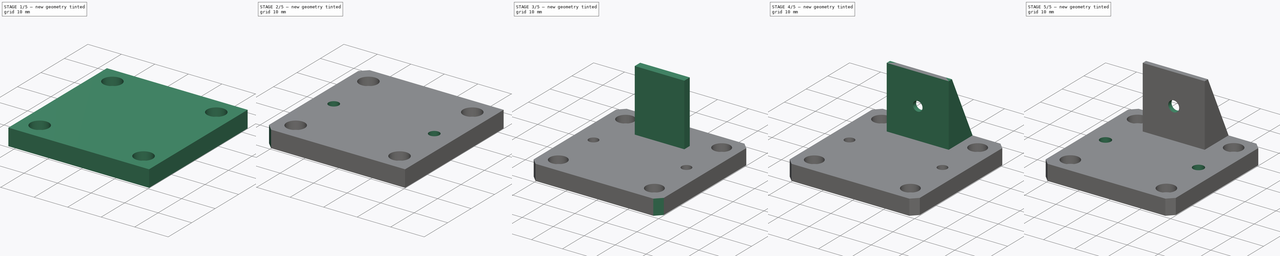
[diagram: build sequence overview — one tinted view per stage of 5, left to right]
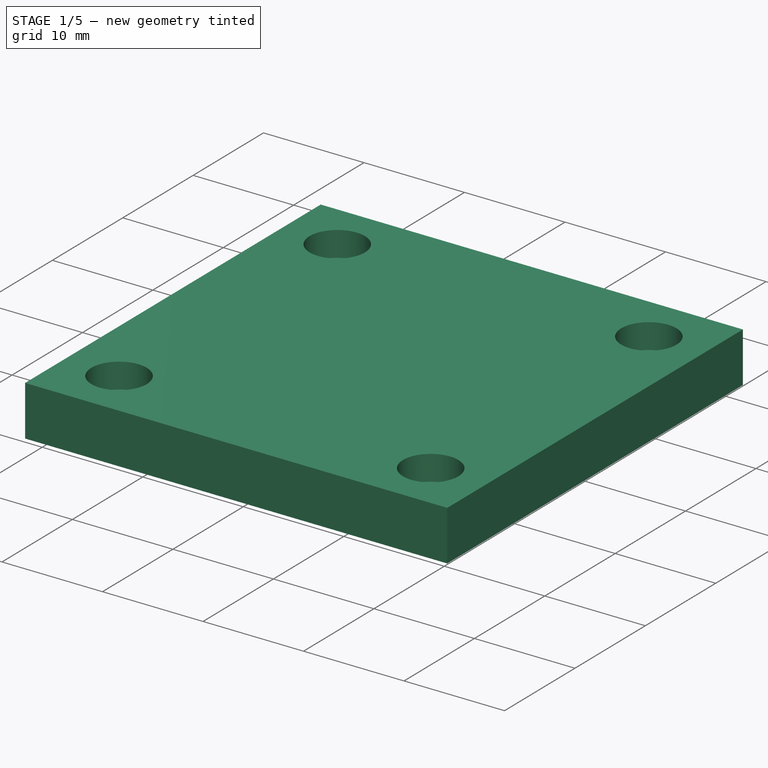
[diagram: stage 1 of 5 — iso view after this stage's code; geometry added in this stage tinted green]
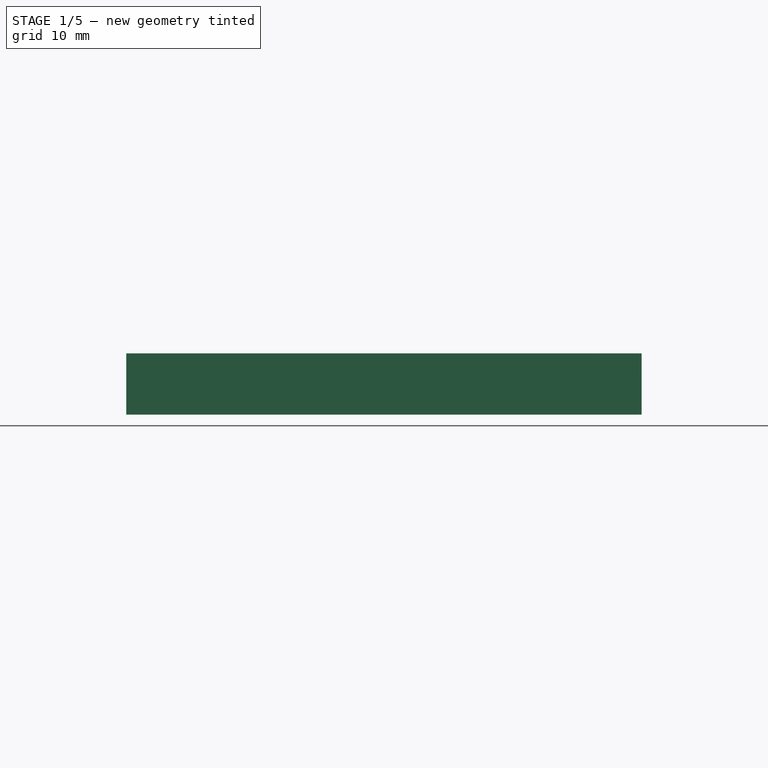
[diagram: stage 1 of 5 — front view after this stage's code; geometry added in this stage tinted green]
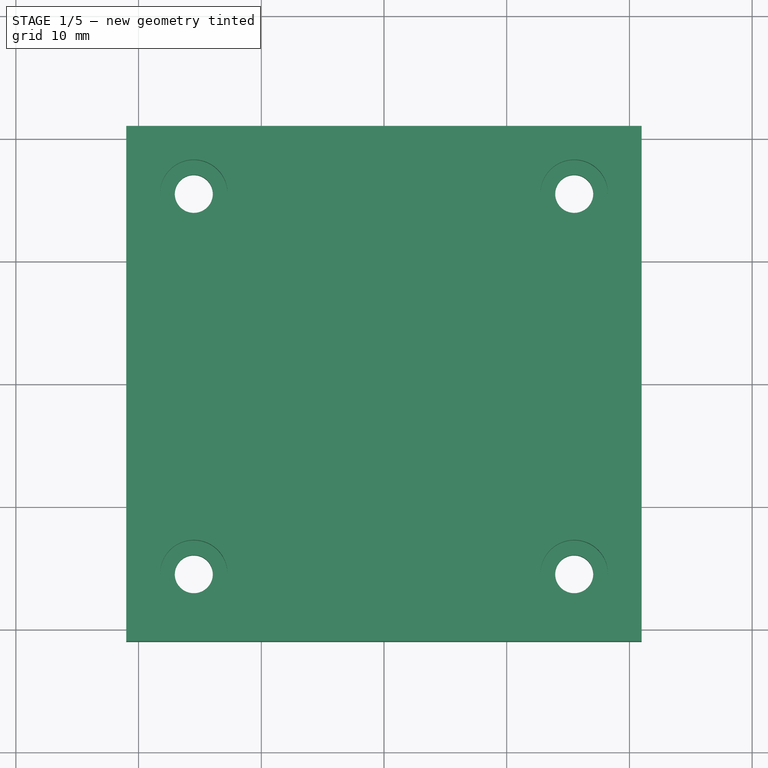
[diagram: stage 1 of 5 — top view after this stage's code; geometry added in this stage tinted green]
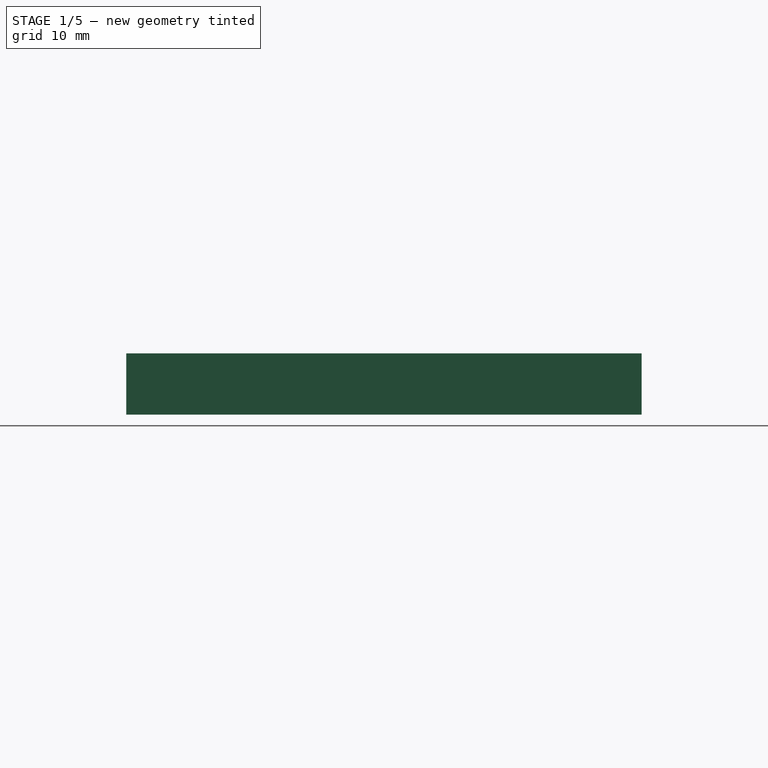
[diagram: stage 1 of 5 — right view after this stage's code; geometry added in this stage tinted green]
FCSTD DOCUMENT  (FreeCAD 0.16R6698 (Git))
Label: nema17_mount
License: All rights reserved
LicenseURL: http://en.wikipedia.org/wiki/All_rights_reserved
objects: Sketcher::SketchObject×13, PartDesign::Pocket×9, PartDesign::Chamfer×4, PartDesign::Pad×3, Part::Box×1
note: 42 computed .brp shape members not serialized (recipe doc carries the construction recipe); baked Part::Feature solids carry a one-line shape summary decoded from their .brp

FEATURE [Part::Box] Box
  Height = 5
  Length = 42
  Placement = pos=(-21,-21,0) rot=(0,0,1;0rad)
  Width = 42
FEATURE [Sketcher::SketchObject] Sketch
  Placement = pos=(-21,-21,5) rot=(0,0,1;0rad)
  Support = -> Box [Face6]
  sketch-geometry (8):
    g0: Circle CenterX=5.5 CenterY=5.5 CenterZ=0 NormalX=0 NormalY=0 NormalZ=1 Radius=2.75
    g1: LineSegment [constr] StartX=5.5 StartY=5.5 StartZ=0 EndX=36.5 EndY=5.5 EndZ=0
    g2: LineSegment [constr] StartX=36.5 StartY=5.5 StartZ=0 EndX=36.5 EndY=36.5 EndZ=0
    g3: LineSegment [constr] StartX=36.5 StartY=36.5 StartZ=0 EndX=5.5 EndY=36.5 EndZ=0
    g4: LineSegment [constr] StartX=5.5 StartY=36.5 StartZ=0 EndX=5.5 EndY=5.5 EndZ=0
    g5: Circle CenterX=36.5 CenterY=5.5 CenterZ=0 NormalX=0 NormalY=0 NormalZ=1 Radius=2.75
    g6: Circle CenterX=36.5 CenterY=36.5 CenterZ=0 NormalX=0 NormalY=0 NormalZ=1 Radius=2.75
    g7: Circle CenterX=5.5 CenterY=36.5 CenterZ=0 NormalX=0 NormalY=0 NormalZ=1 Radius=2.75
  constraints (20):
    c: Radius(g0) = 2.75  'Head recess'
    c: Coincident(g1,g2)
    c: Coincident(g2,g3)
    c: Coincident(g3,g4)
    c: Coincident(g4,g1)
    c: Horizontal(g1)
    c: Horizontal(g3)
    c: Vertical(g2)
    c: Vertical(g4)
    c: DistanceX(g1,g1) = 31
    c: DistanceY(g4,g4) = 31
    c: DistanceX(g-1,g1) = 5.5
    c: DistanceY(g-1,g1) = 5.5
    c: Coincident(g0,g1)
    c: Coincident(g3,g7)
    c: Coincident(g2,g6)
    c: Coincident(g1,g5)
    c: Radius(g5) = 2.75
    c: Radius(g6) = 2.75
    c: Radius(g7) = 2.75
FEATURE [PartDesign::Pocket] Pocket
  Length = 2.5
  Placement = pos=(-21,-21,0) rot=(0,0,1;0rad)
  Sketch = -> Sketch
  Type = 0
FEATURE [Sketcher::SketchObject] Sketch001
  Placement = pos=(-21,-21,0) rot=(1,0,0;3.14159rad)
  Support = -> Pocket [Face5]
  sketch-geometry (8):
    g0: LineSegment [constr] StartX=5.5 StartY=-5.5 StartZ=0 EndX=36.5 EndY=-5.5 EndZ=0
    g1: LineSegment [constr] StartX=36.5 StartY=-5.5 StartZ=0 EndX=36.5 EndY=-36.5 EndZ=0
    g2: LineSegment [constr] StartX=36.5 StartY=-36.5 StartZ=0 EndX=5.5 EndY=-36.5 EndZ=0
    g3: LineSegment [constr] StartX=5.5 StartY=-36.5 StartZ=0 EndX=5.5 EndY=-5.5 EndZ=0
    g4: Circle CenterX=5.5 CenterY=-5.5 CenterZ=0 NormalX=0 NormalY=0 NormalZ=1 Radius=1.55
    g5: Circle CenterX=36.5 CenterY=-5.5 CenterZ=0 NormalX=0 NormalY=0 NormalZ=1 Radius=1.55
    g6: Circle CenterX=36.5 CenterY=-36.5 CenterZ=0 NormalX=0 NormalY=0 NormalZ=1 Radius=1.55
    g7: Circle CenterX=5.5 CenterY=-36.5 CenterZ=0 NormalX=0 NormalY=0 NormalZ=1 Radius=1.55
  constraints (20):
    c: Coincident(g0,g1)
    c: Coincident(g1,g2)
    c: Coincident(g2,g3)
    c: Coincident(g3,g0)
    c: Horizontal(g0)
    c: Horizontal(g2)
    c: Vertical(g1)
    c: Vertical(g3)
    c: DistanceY(g0,g-1) = 5.5
    c: DistanceX(g-1,g0) = 5.5
    c: DistanceX(g0,g0) = 31
    c: DistanceY(g3,g3) = 31
    c: Radius(g4) = 1.55
    c: Coincident(g0,g4)
    c: Coincident(g5,g0)
    c: Coincident(g6,g1)
    c: Coincident(g7,g2)
    c: Radius(g5) = 1.55
    c: Radius(g6) = 1.55
    c: Radius(g7) = 1.55
FEATURE [PartDesign::Pocket] Pocket001
  Length = 5
  Placement = pos=(-21,-21,0) rot=(0,0,1;0rad)
  Sketch = -> Sketch001
  Type = 0
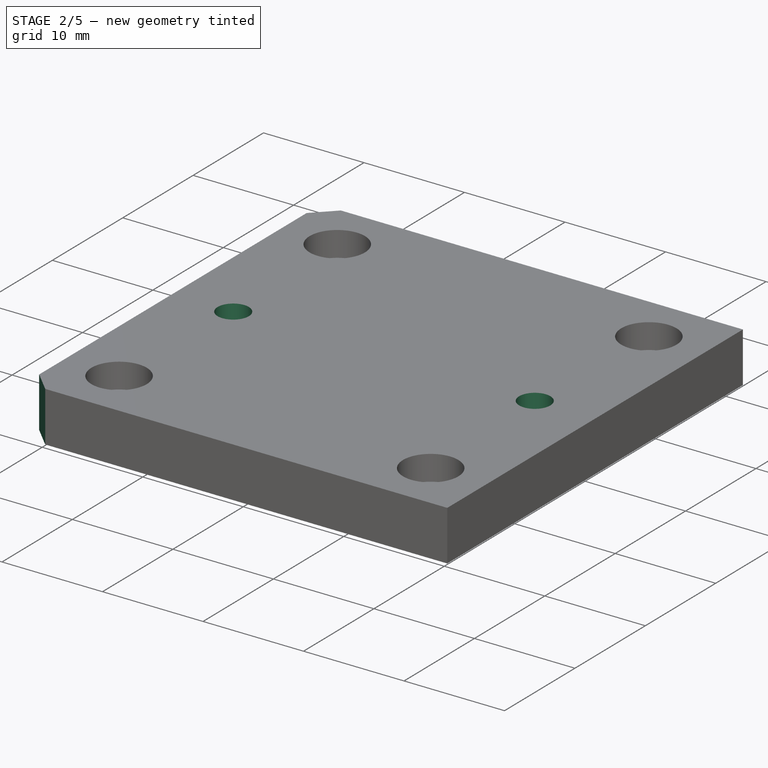
[diagram: stage 2 of 5 — iso view after this stage's code; geometry added in this stage tinted green]
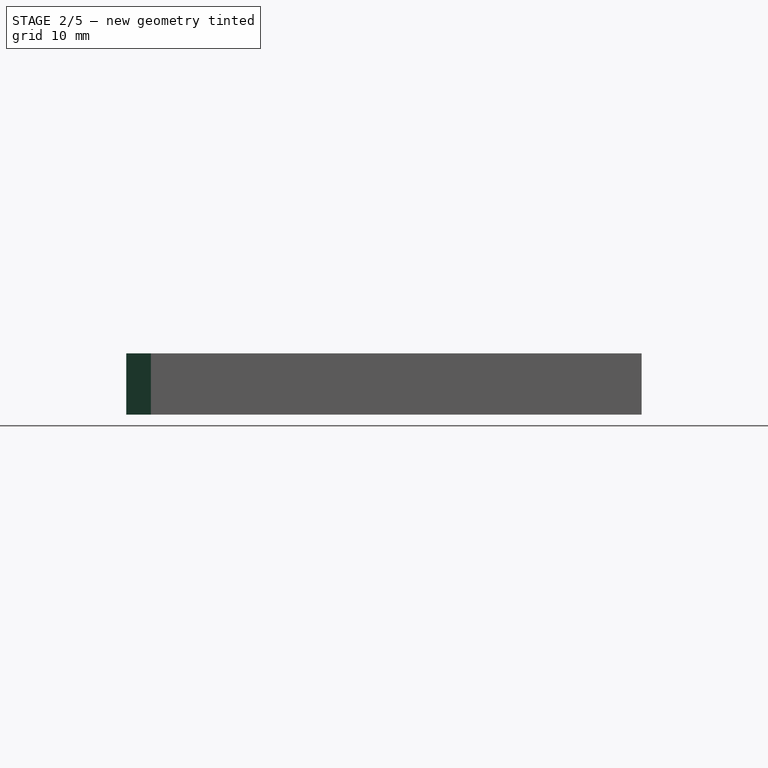
[diagram: stage 2 of 5 — front view after this stage's code; geometry added in this stage tinted green]
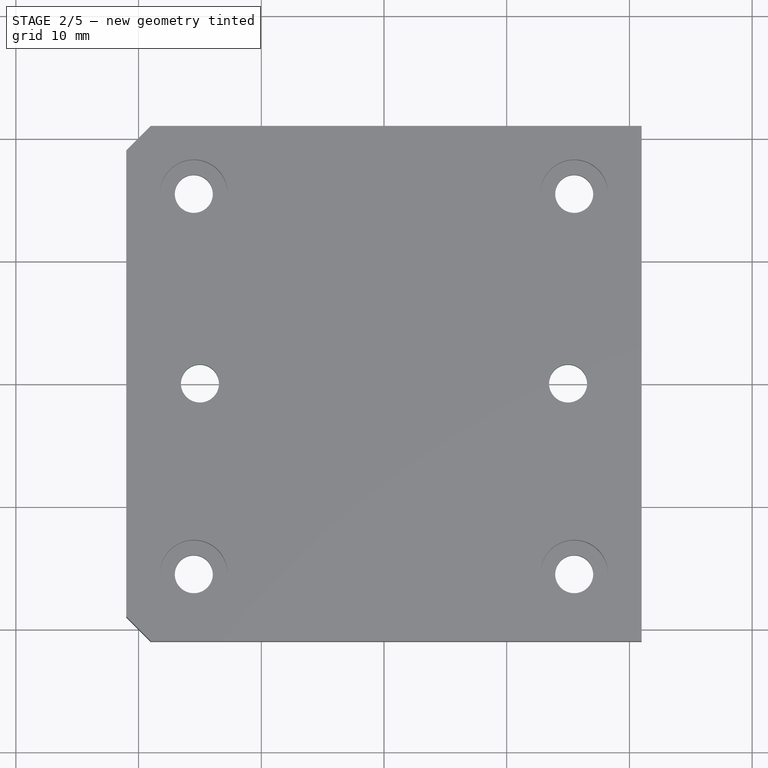
[diagram: stage 2 of 5 — top view after this stage's code; geometry added in this stage tinted green]
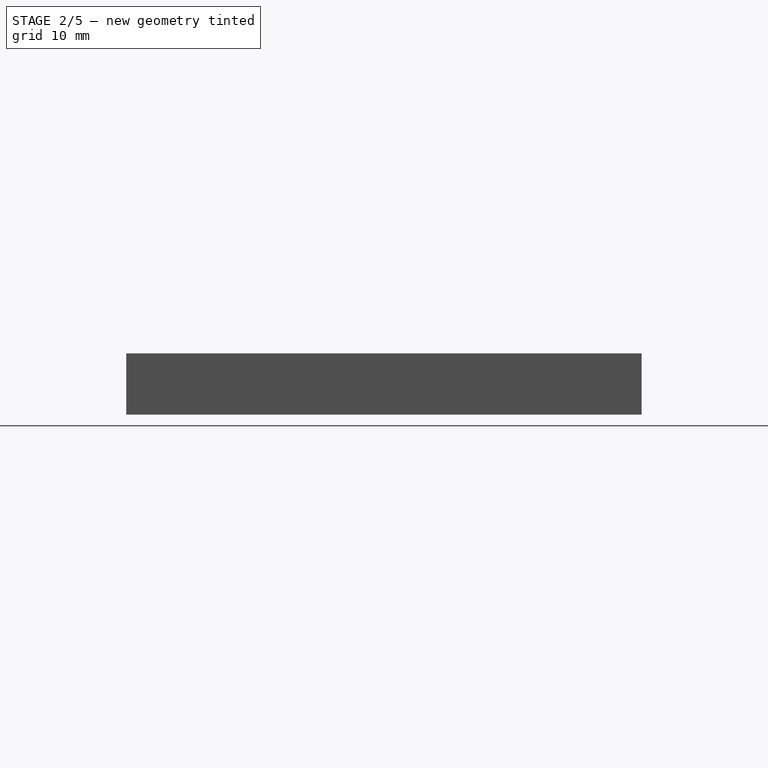
[diagram: stage 2 of 5 — right view after this stage's code; geometry added in this stage tinted green]
FEATURE [Sketcher::SketchObject] Sketch002
  Placement = pos=(-21,-21,0) rot=(1,0,0;3.14159rad)
  Support = -> Pocket001 [Face5]
  sketch-geometry (7):
    g0: LineSegment [constr] StartX=0 StartY=-11 StartZ=0 EndX=42 EndY=-11 EndZ=0
    g1: LineSegment [constr] StartX=42 StartY=-11 StartZ=0 EndX=42 EndY=-31 EndZ=0
    g2: LineSegment [constr] StartX=42 StartY=-31 StartZ=0 EndX=0 EndY=-31 EndZ=0
    g3: LineSegment [constr] StartX=0 StartY=-31 StartZ=0 EndX=0 EndY=-11 EndZ=0
    g4: LineSegment [constr] StartX=6 StartY=-21 StartZ=0 EndX=36 EndY=-21 EndZ=0
    g5: Circle CenterX=6 CenterY=-21 CenterZ=0 NormalX=0 NormalY=0 NormalZ=1 Radius=2.75
    g6: Circle CenterX=36 CenterY=-21 CenterZ=0 NormalX=0 NormalY=0 NormalZ=1 Radius=2.75
  constraints (19):
    c: Coincident(g0,g1)
    c: Coincident(g1,g2)
    c: Coincident(g2,g3)
    c: Coincident(g3,g0)
    c: Horizontal(g0)
    c: Horizontal(g2)
    c: Vertical(g1)
    c: Vertical(g3)
    c: DistanceX(g0,g0) = 42
    c: DistanceY(g0,g-1) = 11
    c: DistanceY(g3,g3) = 20
    c: DistanceX(g-1,g0) = 0
    c: DistanceX(g4,g4) = 30
    c: DistanceX(g0,g4) = 6
    c: DistanceY(g4,g0) = 10
    c: Horizontal(g4)
    c: Coincident(g4,g5)
    c: Radius(g5) = 2.75
    c: Radius(g6) = 2.75
FEATURE [PartDesign::Pocket] Pocket002
  Length = 2.5
  Placement = pos=(-21,-21,0) rot=(0,0,1;0rad)
  Sketch = -> Sketch002
  Type = 0
FEATURE [Sketcher::SketchObject] Sketch003
  Placement = pos=(-21,-21,5) rot=(0,0,1;0rad)
  Support = -> Pocket002 [Face3]
  sketch-geometry (3):
    g0: LineSegment [constr] StartX=6 StartY=21 StartZ=0 EndX=36 EndY=21 EndZ=0
    g1: Circle CenterX=6 CenterY=21 CenterZ=0 NormalX=0 NormalY=0 NormalZ=1 Radius=1.55
    g2: Circle CenterX=36 CenterY=21 CenterZ=0 NormalX=0 NormalY=0 NormalZ=1 Radius=1.55
  constraints (8):
    c: Horizontal(g0)
    c: DistanceX(g0,g0) = 30
    c: DistanceX(g-1,g0) = 6
    c: DistanceY(g-1,g0) = 21
    c: Coincident(g0,g1)
    c: Coincident(g0,g2)
    c: Radius(g2) = 1.55
    c: Radius(g1) = 1.55
FEATURE [PartDesign::Pocket] Pocket003
  Length = 5
  Placement = pos=(-21,-21,0) rot=(0,0,1;0rad)
  Sketch = -> Sketch003
  Type = 0
FEATURE [PartDesign::Chamfer] Chamfer
  Base = -> Pocket003 [Edge1]
  Placement = pos=(-21,-21,0) rot=(0,0,1;0rad)
  Size = 2
FEATURE [PartDesign::Chamfer] Chamfer001
  Base = -> Chamfer [Edge3]
  Placement = pos=(-21,-21,0) rot=(0,0,1;0rad)
  Size = 2
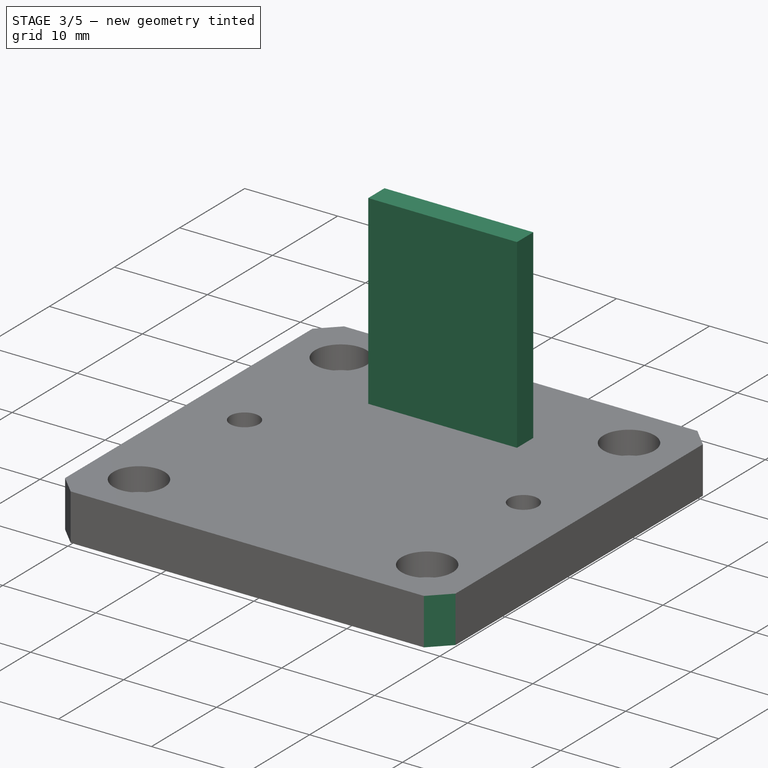
[diagram: stage 3 of 5 — iso view after this stage's code; geometry added in this stage tinted green]
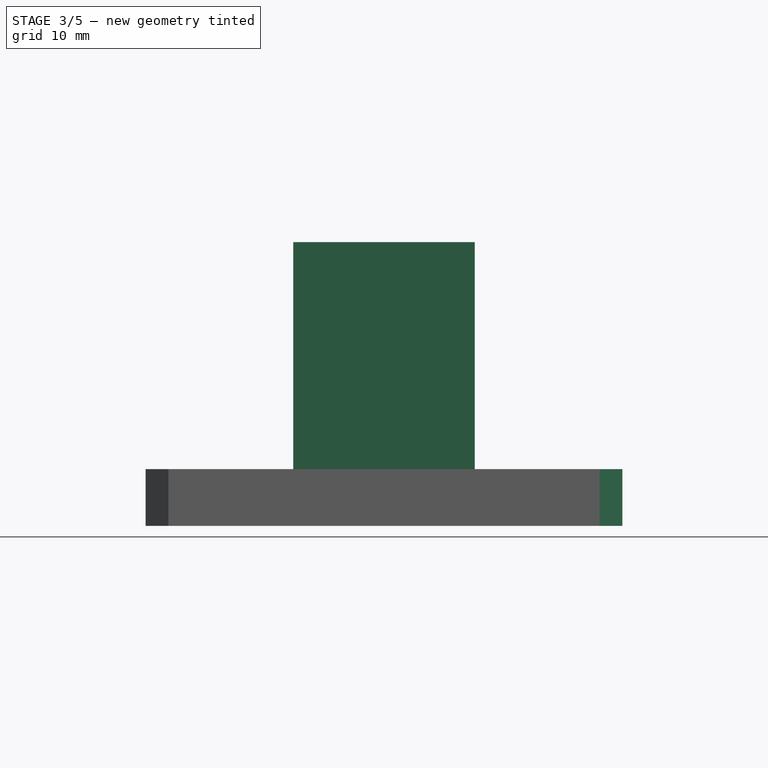
[diagram: stage 3 of 5 — front view after this stage's code; geometry added in this stage tinted green]
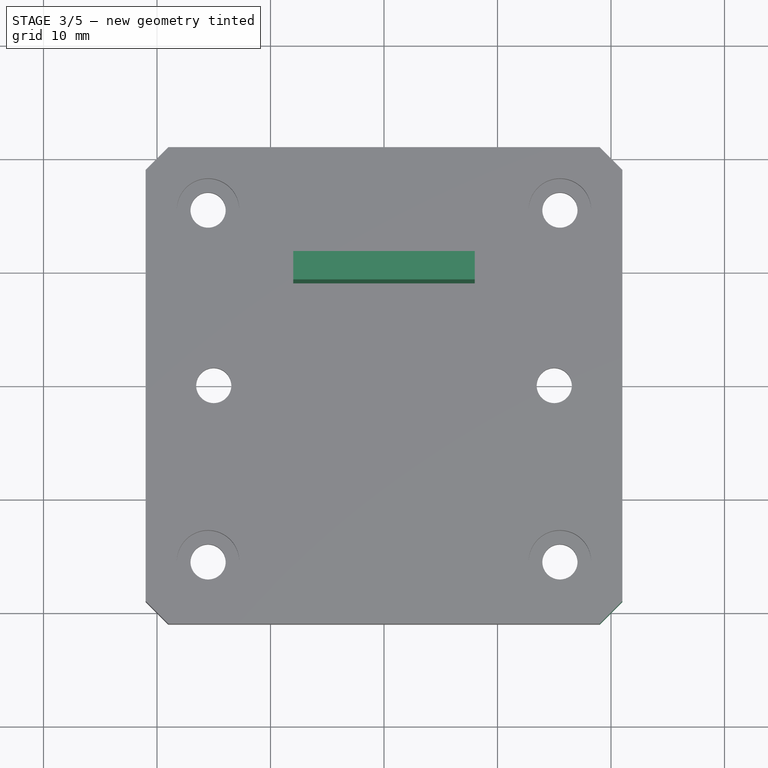
[diagram: stage 3 of 5 — top view after this stage's code; geometry added in this stage tinted green]
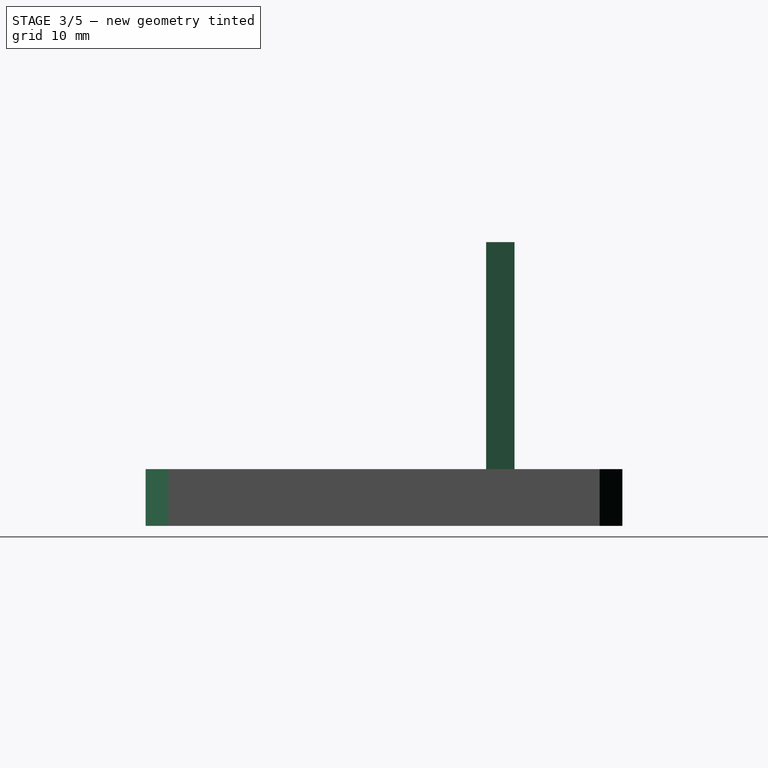
[diagram: stage 3 of 5 — right view after this stage's code; geometry added in this stage tinted green]
FEATURE [PartDesign::Chamfer] Chamfer002
  Base = -> Chamfer001 [Edge29]
  Placement = pos=(-21,-21,0) rot=(0,0,1;0rad)
  Size = 2
FEATURE [PartDesign::Chamfer] Chamfer003
  Base = -> Chamfer002 [Edge21]
  Placement = pos=(-21,-21,0) rot=(0,0,1;0rad)
  Size = 2
FEATURE [Sketcher::SketchObject] Sketch004
  Placement = pos=(-21,-21,5) rot=(0,0,1;0rad)
  Support = -> Chamfer003 [Face1]
  sketch-geometry (6):
    g0: LineSegment [constr] StartX=0 StartY=30 StartZ=0 EndX=42 EndY=30 EndZ=0
    g1: LineSegment StartX=13 StartY=30 StartZ=0 EndX=29 EndY=30 EndZ=0
    g2: LineSegment StartX=29 StartY=30 StartZ=0 EndX=29 EndY=32.5 EndZ=0
    g3: LineSegment StartX=29 StartY=32.5 StartZ=0 EndX=13 EndY=32.5 EndZ=0
    g4: LineSegment StartX=13 StartY=32.5 StartZ=0 EndX=13 EndY=30 EndZ=0
    g5: LineSegment [constr] StartX=21 StartY=41.6855 StartZ=0 EndX=21 EndY=-1.02632 EndZ=0
  constraints (18):
    c: DistanceX(g0,g0) = 42
    c: Horizontal(g0)
    c: DistanceX(g0,g-1) = 0
    c: DistanceY(g-1,g0) = 30
    c: Coincident(g1,g2)
    c: Coincident(g2,g3)
    c: Coincident(g3,g4)
    c: Coincident(g4,g1)
    c: Horizontal(g1)
    c: Horizontal(g3)
    c: Vertical(g2)
    c: Vertical(g4)
    c: DistanceX(g3,g3) = 16
    c: DistanceY(g4,g4) = 2.5
    c: DistanceY(g1,g0) = 0
    c: DistanceX(g0,g1) = 13
    c: Vertical(g5)
    c: DistanceX(g-1,g5) = 21
FEATURE [PartDesign::Pad] Pad
  Length = 20
  Length2 = 100
  Placement = pos=(-21,-21,0) rot=(0,0,1;0rad)
  Sketch = -> Sketch004
  Type = 0
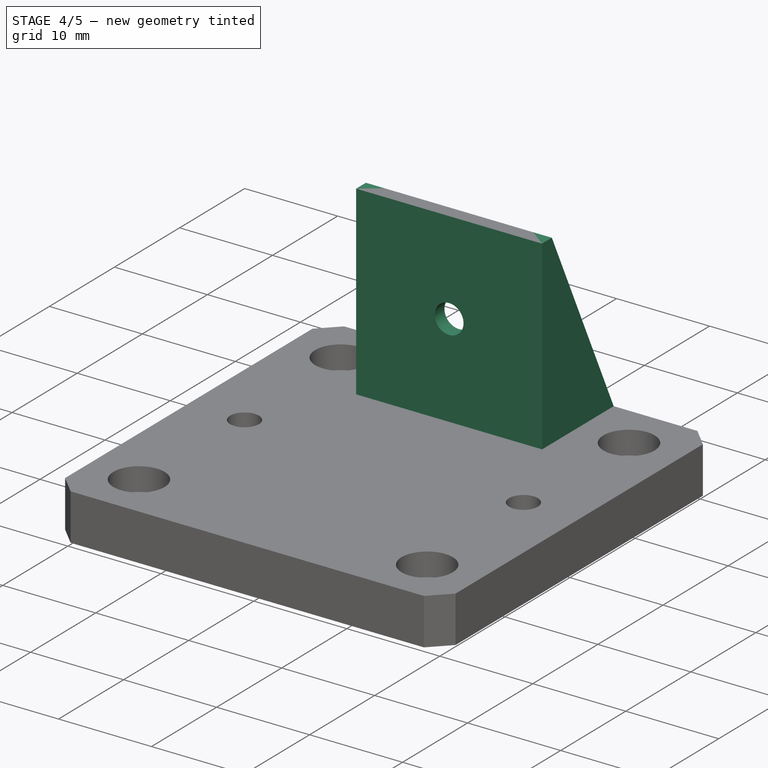
[diagram: stage 4 of 5 — iso view after this stage's code; geometry added in this stage tinted green]
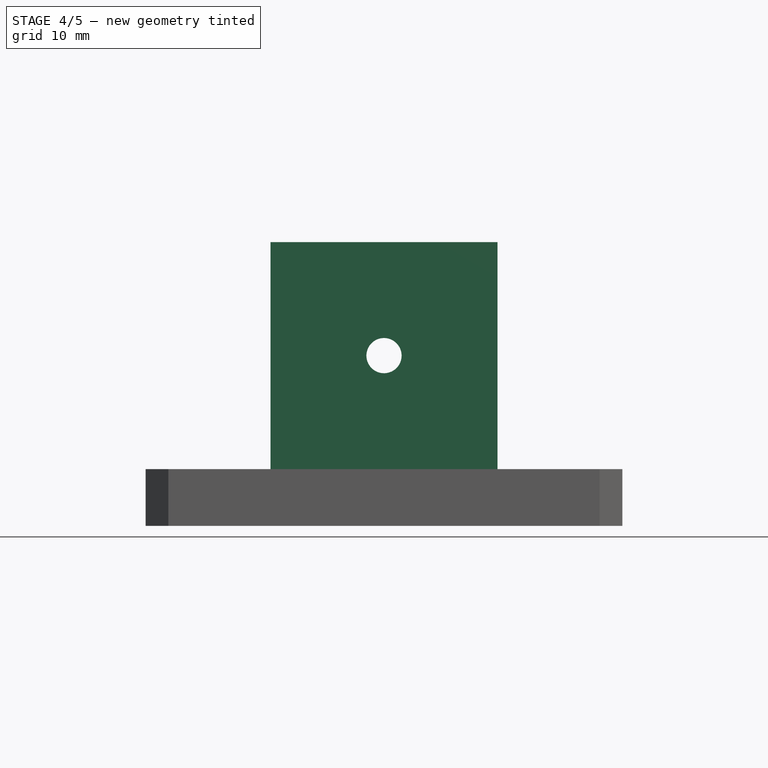
[diagram: stage 4 of 5 — front view after this stage's code; geometry added in this stage tinted green]
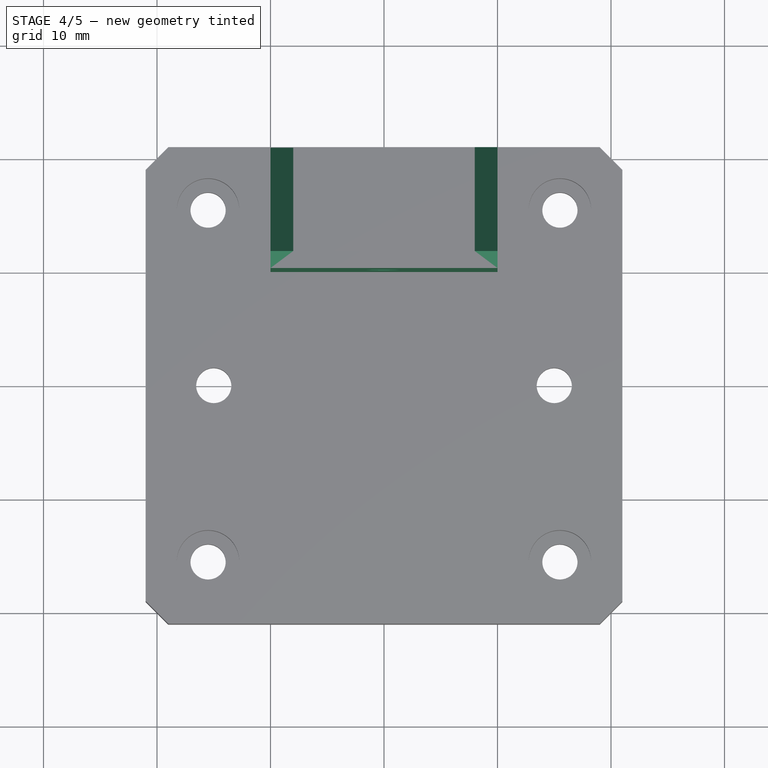
[diagram: stage 4 of 5 — top view after this stage's code; geometry added in this stage tinted green]
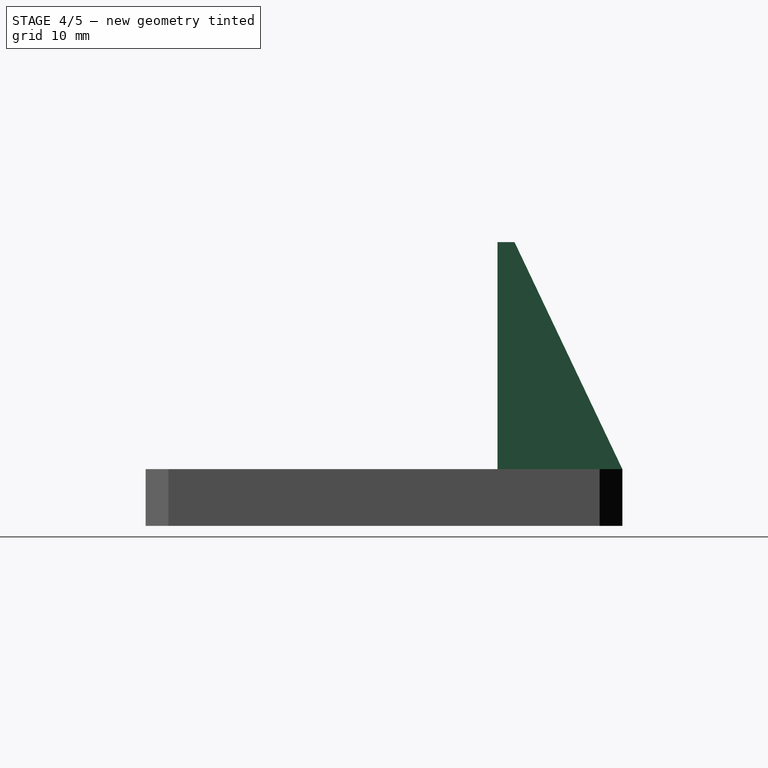
[diagram: stage 4 of 5 — right view after this stage's code; geometry added in this stage tinted green]
FEATURE [Sketcher::SketchObject] Sketch005
  ExternalGeometry = -> [Pad]
  Placement = pos=(-8,-21,0) rot=(0.57735,-0.57735,-0.57735;2.0944rad)
  Support = -> Pad [Face5]
  sketch-geometry (4):
    g0: LineSegment StartX=-30 StartY=25 StartZ=0 EndX=-32.5 EndY=25 EndZ=0
    g1: LineSegment StartX=-32.5 StartY=25 StartZ=0 EndX=-41.9451 EndY=5 EndZ=0
    g2: LineSegment StartX=-41.9451 StartY=5 StartZ=0 EndX=-30 EndY=5 EndZ=0
    g3: LineSegment StartX=-30 StartY=5 StartZ=0 EndX=-30 EndY=25 EndZ=0
  constraints (6):
    c: Coincident(g0,g1)
    c: Coincident(g1,g2)
    c: Coincident(g2,g3)
    c: Coincident(g3,g0)
    c: Coincident(g0,g-3)
    c: Coincident(g0,g-4)
FEATURE [PartDesign::Pad] Pad001
  Length = 2
  Length2 = 100
  Placement = pos=(-21,-21,0) rot=(0,0,1;0rad)
  Sketch = -> Sketch005
  Type = 0
FEATURE [Sketcher::SketchObject] Sketch006
  ExternalGeometry = -> [Pad001]
  Placement = pos=(8,-21,0) rot=(0.57735,0.57735,0.57735;2.0944rad)
  Support = -> Pad001 [Face1]
  sketch-geometry (4):
    g0: LineSegment StartX=30 StartY=25 StartZ=0 EndX=32.5 EndY=25 EndZ=0
    g1: LineSegment StartX=32.5 StartY=25 StartZ=0 EndX=42 EndY=5 EndZ=0
    g2: LineSegment StartX=42 StartY=5 StartZ=0 EndX=30 EndY=5 EndZ=0
    g3: LineSegment StartX=30 StartY=5 StartZ=0 EndX=30 EndY=25 EndZ=0
  constraints (7):
    c: Coincident(g0,g1)
    c: Coincident(g1,g2)
    c: Coincident(g2,g3)
    c: Coincident(g3,g0)
    c: Coincident(g0,g-4)
    c: Coincident(g1,g-5)
    c: Coincident(g0,g-3)
FEATURE [PartDesign::Pad] Pad002
  Length = 2
  Length2 = 100
  Placement = pos=(-21,-21,0) rot=(0,0,1;0rad)
  Sketch = -> Sketch006
  Type = 0
FEATURE [Sketcher::SketchObject] Sketch007
  ExternalGeometry = -> [Pad002]
  Placement = pos=(-21,11.5,0) rot=(0,0.707107,0.707107;3.14159rad)
  Support = -> Pad002 [Face4]
  sketch-geometry (1):
    g0: Circle CenterX=-21 CenterY=15 CenterZ=0 NormalX=0 NormalY=0 NormalZ=1 Radius=1.55
  constraints (3):
    c: DistanceX(g0,g-3) = 10
    c: DistanceY(g0,g-3) = 10
    c: Radius(g0) = 1.55
FEATURE [PartDesign::Pocket] Pocket004
  Length = 5
  Placement = pos=(-21,-21,0) rot=(0,0,1;0rad)
  Sketch = -> Sketch007
  Type = 0
FEATURE [Sketcher::SketchObject] Sketch008
  ExternalGeometry = -> [Pocket004]
  Placement = pos=(-21,9,0) rot=(1,0,0;1.5708rad)
  Support = -> Pocket004 [Face3]
  sketch-geometry (4):
    g0: LineSegment StartX=11 StartY=25 StartZ=0 EndX=31 EndY=25 EndZ=0
    g1: LineSegment StartX=31 StartY=25 StartZ=0 EndX=31 EndY=5 EndZ=0
    g2: LineSegment StartX=31 StartY=5 StartZ=0 EndX=11 EndY=5 EndZ=0
    g3: LineSegment StartX=11 StartY=5 StartZ=0 EndX=11 EndY=25 EndZ=0
  constraints (8):
    c: Coincident(g0,g1)
    c: Coincident(g1,g2)
    c: Coincident(g2,g3)
    c: Coincident(g3,g0)
    c: Horizontal(g0)
    c: Horizontal(g2)
    c: Vertical(g1)
    c: Vertical(g3)
FEATURE [PartDesign::Pocket] Pocket005
  Length = 1
  Placement = pos=(-21,-21,0) rot=(0,0,1;0rad)
  Sketch = -> Sketch008
  Type = 0
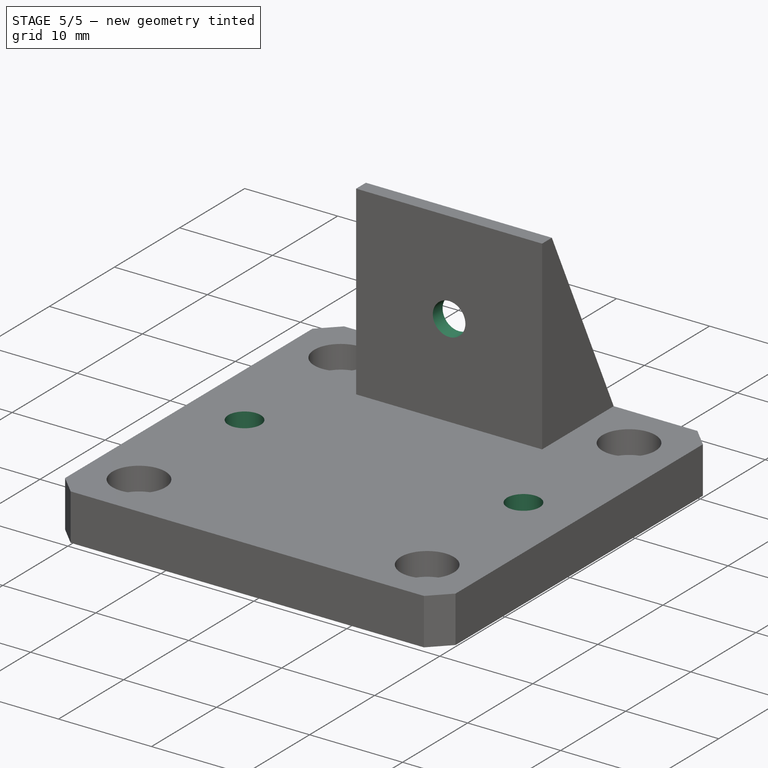
[diagram: stage 5 of 5 — iso view after this stage's code; geometry added in this stage tinted green]
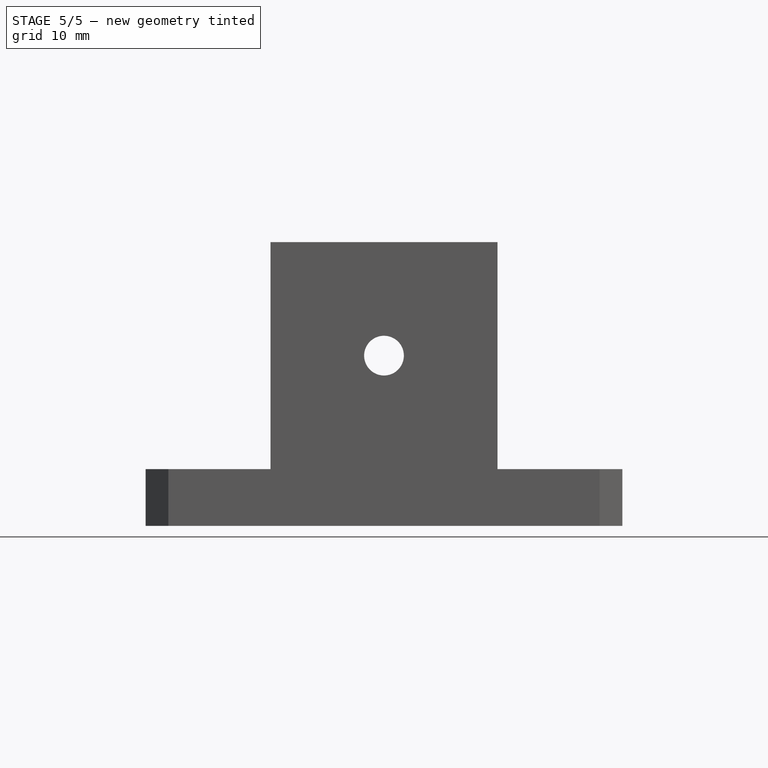
[diagram: stage 5 of 5 — front view after this stage's code; geometry added in this stage tinted green]
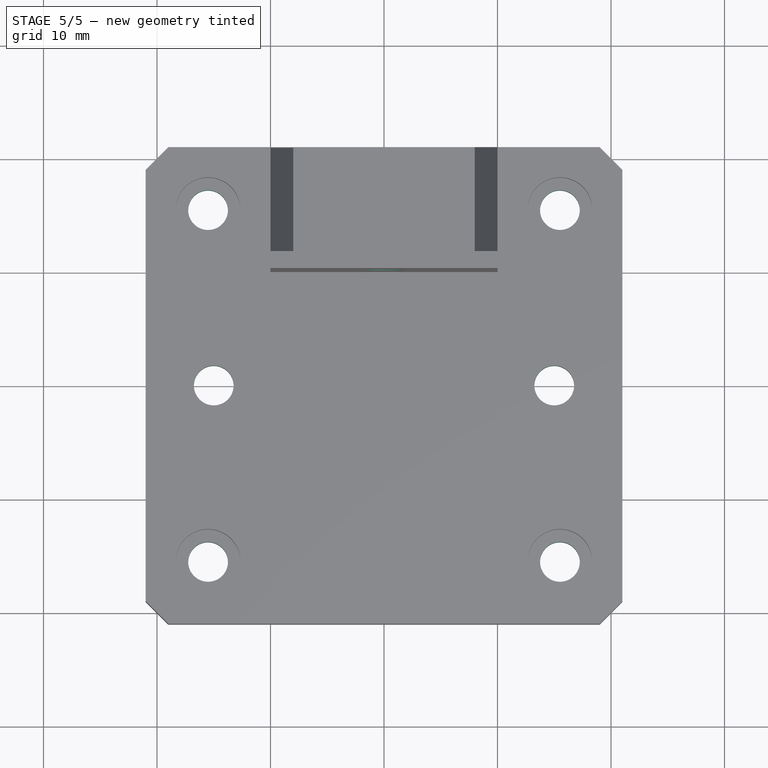
[diagram: stage 5 of 5 — top view after this stage's code; geometry added in this stage tinted green]
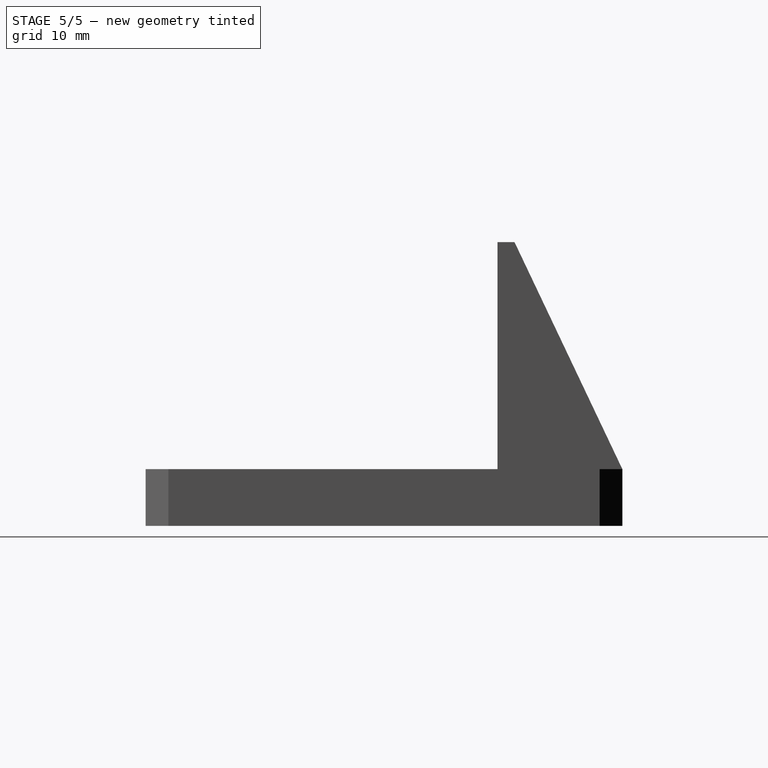
[diagram: stage 5 of 5 — right view after this stage's code; geometry added in this stage tinted green]
FEATURE [Sketcher::SketchObject] Sketch009
  ExternalGeometry = -> [Pocket005]
  Placement = pos=(-21,-21,5) rot=(0,0,1;0rad)
  Support = -> Pocket005 [Face38]
  constraints (1):
    c: DistanceY(g-4,g-3) = 10
FEATURE [Sketcher::SketchObject] Sketch010
  ExternalGeometry = -> [Pocket005]
  Placement = pos=(-21,-21,5) rot=(0,0,1;0rad)
  Support = -> Pocket005 [Face38]
  sketch-geometry (6):
    g0: Circle CenterX=5.5 CenterY=36.5 CenterZ=0 NormalX=0 NormalY=0 NormalZ=1 Radius=2.85
    g1: Circle CenterX=5.5 CenterY=5.5 CenterZ=0 NormalX=0 NormalY=0 NormalZ=1 Radius=2.85
    g2: Circle CenterX=36.5 CenterY=5.5 CenterZ=0 NormalX=0 NormalY=0 NormalZ=1 Radius=2.85
    g3: Circle CenterX=36 CenterY=21 CenterZ=0 NormalX=0 NormalY=0 NormalZ=1 Radius=1.75
    g4: Circle CenterX=36.5 CenterY=36.5 CenterZ=0 NormalX=0 NormalY=0 NormalZ=1 Radius=2.85
    g5: Circle CenterX=6 CenterY=21 CenterZ=0 NormalX=0 NormalY=0 NormalZ=1 Radius=1.75
  constraints (11):
    c: Coincident(g0,g-3)
    c: Coincident(g-4,g1)
    c: Coincident(g2,g-5)
    c: Coincident(g3,g-6)
    c: Radius(g4) = 2.85
    c: Radius(g0) = 2.85
    c: Coincident(g5,g-7)
    c: Radius(g5) = 1.75
    c: Radius(g3) = 1.75
    c: Radius(g1) = 2.85
    c: Radius(g2) = 2.85
FEATURE [PartDesign::Pocket] Pocket006
  Length = 2.5
  Placement = pos=(-21,-21,0) rot=(0,0,1;0rad)
  Sketch = -> Sketch010
  Type = 0
FEATURE [Sketcher::SketchObject] Sketch011
  ExternalGeometry = -> [Pocket006]
  Placement = pos=(-21,-21,0) rot=(1,0,0;3.14159rad)
  Support = -> Pocket006 [Face26]
  sketch-geometry (6):
    g0: Circle CenterX=5.5 CenterY=-5.5 CenterZ=0 NormalX=0 NormalY=0 NormalZ=1 Radius=1.75
    g1: Circle CenterX=36.5 CenterY=-5.5 CenterZ=0 NormalX=0 NormalY=0 NormalZ=1 Radius=1.75
    g2: Circle CenterX=6 CenterY=-21 CenterZ=0 NormalX=0 NormalY=0 NormalZ=1 Radius=2.85
    g3: Circle CenterX=36 CenterY=-21 CenterZ=0 NormalX=0 NormalY=0 NormalZ=1 Radius=2.85
    g4: Circle CenterX=36.5 CenterY=-36.5 CenterZ=0 NormalX=0 NormalY=0 NormalZ=1 Radius=1.75
    g5: Circle CenterX=5.5 CenterY=-36.5 CenterZ=0 NormalX=0 NormalY=0 NormalZ=1 Radius=1.75
  constraints (13):
    c: Coincident(g5,g-7)
    c: Coincident(g4,g-8)
    c: Coincident(g3,g-5)
    c: Coincident(g1,g-4)
    c: Coincident(g0,g-3)
    c: Coincident(g2,g-6)
    c: Radius(g0) = 1.75
    c: Radius(g1) = 1.75
    c: Radius(g4) = 1.75
    c: Equal(g4,g5)
    c: Radius(g-5) = 2.75
    c: Radius(g2) = 2.85
    c: Equal(g2,g3)
FEATURE [PartDesign::Pocket] Pocket007
  Length = 2.5
  Placement = pos=(-21,-21,0) rot=(0,0,1;0rad)
  Sketch = -> Sketch011
  Type = 0
FEATURE [Sketcher::SketchObject] Sketch012
  ExternalGeometry = -> [Pocket007]
  Placement = pos=(-21,10,0) rot=(1,0,0;1.5708rad)
  Support = -> Pocket007 [Face15]
  sketch-geometry (1):
    g0: Circle CenterX=21 CenterY=15 CenterZ=0 NormalX=0 NormalY=0 NormalZ=1 Radius=1.75
  constraints (2):
    c: Coincident(g0,g-3)
    c: Radius(g0) = 1.75
FEATURE [PartDesign::Pocket] Pocket008
  Length = 5
  Placement = pos=(-21,-21,0) rot=(0,0,1;0rad)
  Sketch = -> Sketch012
  Type = 0
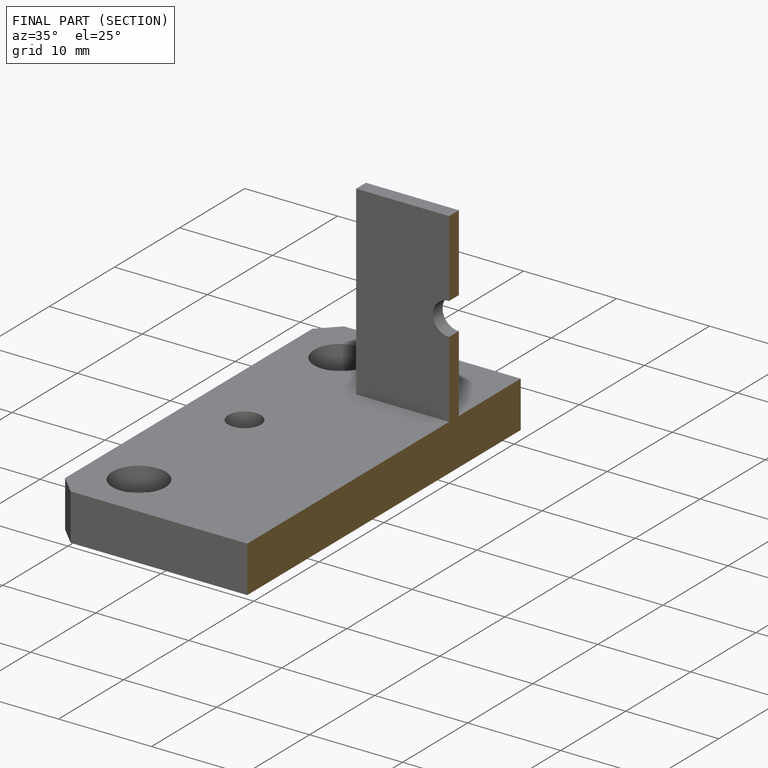
[diagram: finished part — half-section view (interior)]
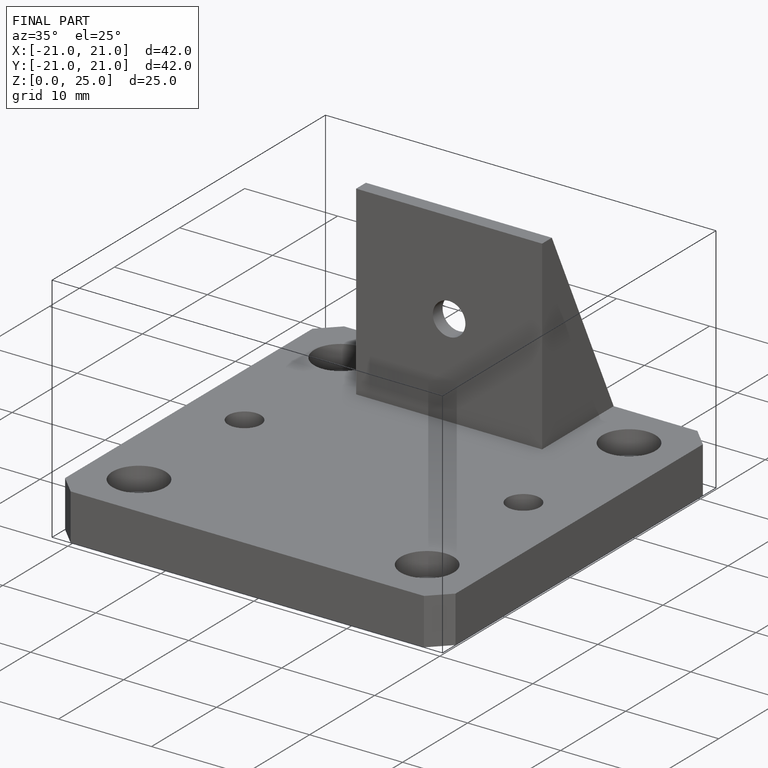
[diagram: finished part — iso view with bounding-box wireframe]
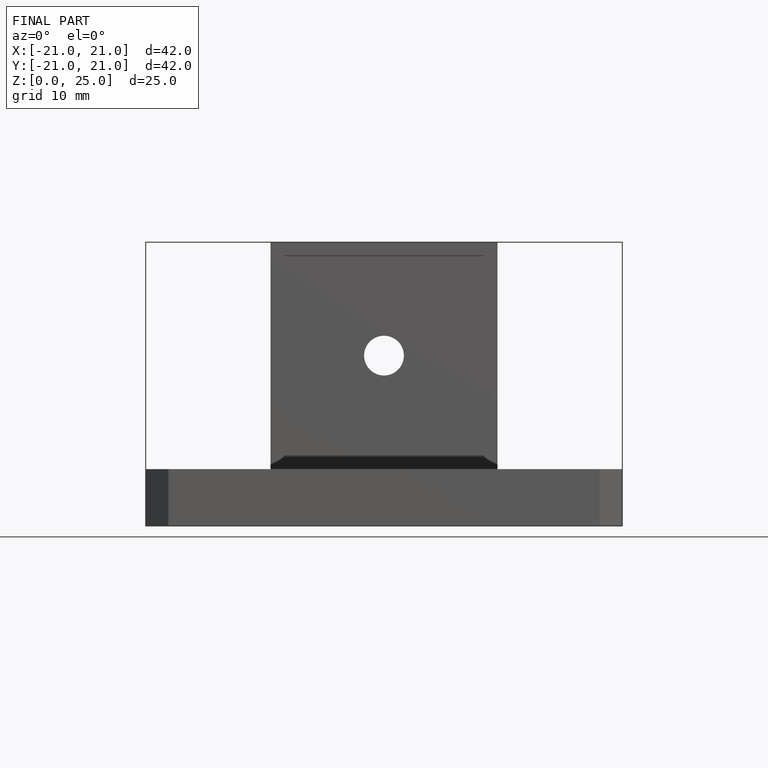
[diagram: finished part — front view with bounding-box wireframe]
